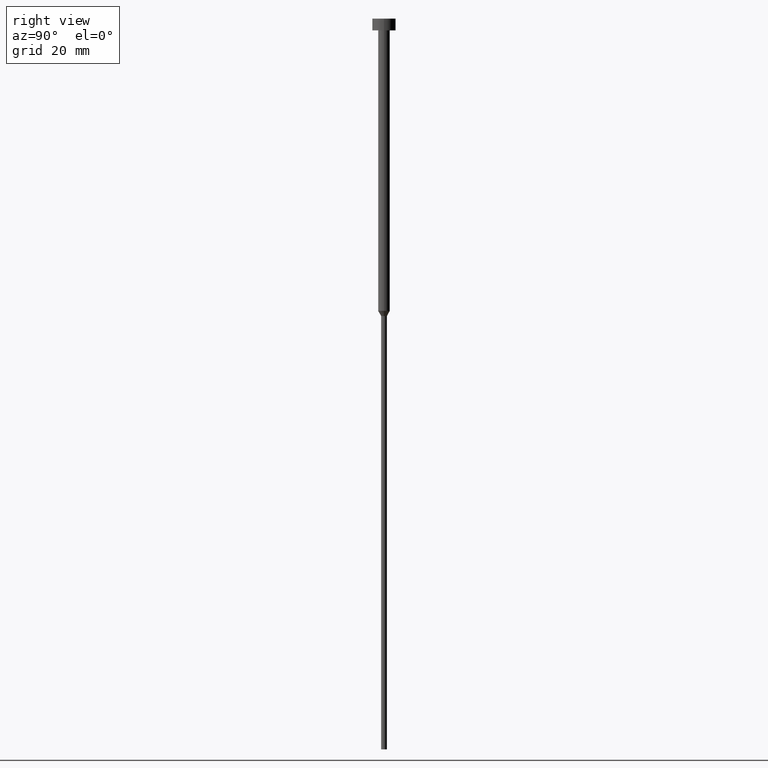
[diagram: clean part render]
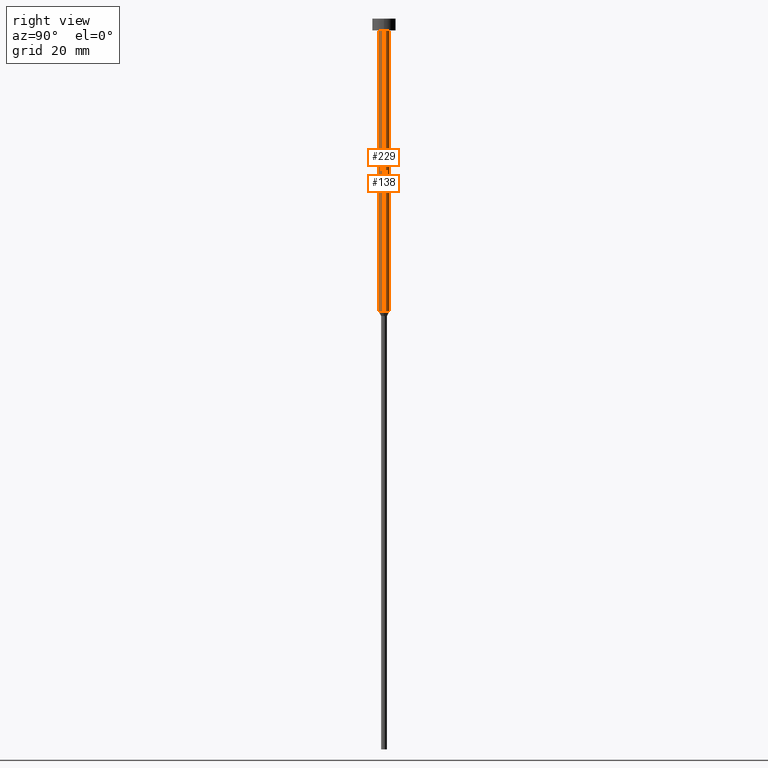
[diagram: same view with one multi-face feature highlighted, each face labeled with its STEP entity id]
A machine part, right view. The highlighted faces form ONE feature: a constant-radius fillet chain: 2 tangent blend faces with common blend radius 1 mm. The faces share edges in the B-rep.
Their STEP definitions:
[1] entity #138 (Cylinder):
#19 = EDGE_CURVE ( 'NONE', #308, #65, #204, .T. ) ;
#22 = DIRECTION ( 'NONE',  ( 1.000000000000000000, 0.000000000000000000, 0.000000000000000000 ) ) ;
#34 = EDGE_CURVE ( 'NONE', #220, #308, #131, .T. ) ;
#42 = VECTOR ( 'NONE', #73, 1000.000000000000000 ) ;
#52 = CARTESIAN_POINT ( 'NONE',  ( -1.000000000000003553, 1.224646799147357398E-16, -2.000000000000000444 ) ) ;
#64 = CIRCLE ( 'NONE', #323, 1.000000000000003553 ) ;
#65 = VERTEX_POINT ( 'NONE', #52 ) ;
#73 = DIRECTION ( 'NONE',  ( -0.000000000000000000, -0.000000000000000000, 1.000000000000000000 ) ) ;
#79 = DIRECTION ( 'NONE',  ( 1.000000000000000000, 0.000000000000000000, 0.000000000000000000 ) ) ;
#82 = CARTESIAN_POINT ( 'NONE',  ( 0.000000000000000000, 0.000000000000000000, -50.00000000000000000 ) ) ;
#85 = ORIENTED_EDGE ( 'NONE', *, *, #34, .T. ) ;
#90 = VERTEX_POINT ( 'NONE', #154 ) ;
#103 = FACE_OUTER_BOUND ( 'NONE', #332, .T. ) ;
#120 = DIRECTION ( 'NONE',  ( -0.000000000000000000, -0.000000000000000000, 1.000000000000000000 ) ) ;
#126 = EDGE_CURVE ( 'NONE', #90, #65, #64, .T. ) ;
#128 = CYLINDRICAL_SURFACE ( 'NONE', #193, 1.000000000000003331 ) ;
#131 = CIRCLE ( 'NONE', #170, 1.000000000000003109 ) ;
#138 = ADVANCED_FACE ( 'NONE', ( #103 ), #128, .T. ) ;
#154 = CARTESIAN_POINT ( 'NONE',  ( 1.000000000000003553, 0.000000000000000000, -2.000000000000000444 ) ) ;
#170 = AXIS2_PLACEMENT_3D ( 'NONE', #82, #248, #189 ) ;
#179 = CARTESIAN_POINT ( 'NONE',  ( 1.000000000000003331, 0.000000000000000000, 0.000000000000000000 ) ) ;
#184 = CARTESIAN_POINT ( 'NONE',  ( 0.000000000000000000, 0.000000000000000000, -2.000000000000000444 ) ) ;
#189 = DIRECTION ( 'NONE',  ( 1.000000000000000000, 0.000000000000000000, 0.000000000000000000 ) ) ;
#193 = AXIS2_PLACEMENT_3D ( 'NONE', #324, #245, #79 ) ;
#197 = CARTESIAN_POINT ( 'NONE',  ( -1.000000000000003109, 1.224646799147356905E-16, -50.00000000000000000 ) ) ;
#201 = ORIENTED_EDGE ( 'NONE', *, *, #282, .F. ) ;
#204 = LINE ( 'NONE', #206, #42 ) ;
#206 = CARTESIAN_POINT ( 'NONE',  ( -1.000000000000003331, 1.224646799147357151E-16, 0.000000000000000000 ) ) ;
#216 = CARTESIAN_POINT ( 'NONE',  ( 1.000000000000003109, 0.000000000000000000, -50.00000000000000000 ) ) ;
#220 = VERTEX_POINT ( 'NONE', #216 ) ;
#245 = DIRECTION ( 'NONE',  ( -0.000000000000000000, -0.000000000000000000, 1.000000000000000000 ) ) ;
#248 = DIRECTION ( 'NONE',  ( -0.000000000000000000, -0.000000000000000000, 1.000000000000000000 ) ) ;
#251 = ORIENTED_EDGE ( 'NONE', *, *, #19, .T. ) ;
#266 = DIRECTION ( 'NONE',  ( -0.000000000000000000, -0.000000000000000000, 1.000000000000000000 ) ) ;
#275 = ORIENTED_EDGE ( 'NONE', *, *, #126, .F. ) ;
#282 = EDGE_CURVE ( 'NONE', #220, #90, #307, .T. ) ;
#283 = VECTOR ( 'NONE', #120, 1000.000000000000000 ) ;
#307 = LINE ( 'NONE', #179, #283 ) ;
#308 = VERTEX_POINT ( 'NONE', #197 ) ;
#323 = AXIS2_PLACEMENT_3D ( 'NONE', #184, #266, #22 ) ;
#324 = CARTESIAN_POINT ( 'NONE',  ( 0.000000000000000000, 0.000000000000000000, 0.000000000000000000 ) ) ;
#332 = EDGE_LOOP ( 'NONE', ( #85, #251, #275, #201 ) ) ;
[2] entity #229 (Cylinder):
#10 = AXIS2_PLACEMENT_3D ( 'NONE', #155, #132, #293 ) ;
#13 = ORIENTED_EDGE ( 'NONE', *, *, #282, .T. ) ;
#19 = EDGE_CURVE ( 'NONE', #308, #65, #204, .T. ) ;
#31 = DIRECTION ( 'NONE',  ( 1.000000000000000000, 0.000000000000000000, 0.000000000000000000 ) ) ;
#42 = VECTOR ( 'NONE', #73, 1000.000000000000000 ) ;
#52 = CARTESIAN_POINT ( 'NONE',  ( -1.000000000000003553, 1.224646799147357398E-16, -2.000000000000000444 ) ) ;
#58 = ORIENTED_EDGE ( 'NONE', *, *, #254, .F. ) ;
#65 = VERTEX_POINT ( 'NONE', #52 ) ;
#72 = EDGE_CURVE ( 'NONE', #308, #220, #264, .T. ) ;
#73 = DIRECTION ( 'NONE',  ( -0.000000000000000000, -0.000000000000000000, 1.000000000000000000 ) ) ;
#86 = DIRECTION ( 'NONE',  ( -0.000000000000000000, -0.000000000000000000, 1.000000000000000000 ) ) ;
#90 = VERTEX_POINT ( 'NONE', #154 ) ;
#120 = DIRECTION ( 'NONE',  ( -0.000000000000000000, -0.000000000000000000, 1.000000000000000000 ) ) ;
#125 = CIRCLE ( 'NONE', #261, 1.000000000000003553 ) ;
#132 = DIRECTION ( 'NONE',  ( -0.000000000000000000, -0.000000000000000000, 1.000000000000000000 ) ) ;
#154 = CARTESIAN_POINT ( 'NONE',  ( 1.000000000000003553, 0.000000000000000000, -2.000000000000000444 ) ) ;
#155 = CARTESIAN_POINT ( 'NONE',  ( 0.000000000000000000, 0.000000000000000000, -50.00000000000000000 ) ) ;
#164 = FACE_OUTER_BOUND ( 'NONE', #176, .T. ) ;
#171 = DIRECTION ( 'NONE',  ( -0.000000000000000000, -0.000000000000000000, 1.000000000000000000 ) ) ;
#176 = EDGE_LOOP ( 'NONE', ( #344, #288, #13, #58 ) ) ;
#179 = CARTESIAN_POINT ( 'NONE',  ( 1.000000000000003331, 0.000000000000000000, 0.000000000000000000 ) ) ;
#187 = AXIS2_PLACEMENT_3D ( 'NONE', #277, #86, #31 ) ;
#197 = CARTESIAN_POINT ( 'NONE',  ( -1.000000000000003109, 1.224646799147356905E-16, -50.00000000000000000 ) ) ;
#204 = LINE ( 'NONE', #206, #42 ) ;
#206 = CARTESIAN_POINT ( 'NONE',  ( -1.000000000000003331, 1.224646799147357151E-16, 0.000000000000000000 ) ) ;
#216 = CARTESIAN_POINT ( 'NONE',  ( 1.000000000000003109, 0.000000000000000000, -50.00000000000000000 ) ) ;
#220 = VERTEX_POINT ( 'NONE', #216 ) ;
#229 = ADVANCED_FACE ( 'NONE', ( #164 ), #331, .T. ) ;
#254 = EDGE_CURVE ( 'NONE', #65, #90, #125, .T. ) ;
#261 = AXIS2_PLACEMENT_3D ( 'NONE', #287, #171, #341 ) ;
#264 = CIRCLE ( 'NONE', #10, 1.000000000000003109 ) ;
#277 = CARTESIAN_POINT ( 'NONE',  ( 0.000000000000000000, 0.000000000000000000, 0.000000000000000000 ) ) ;
#282 = EDGE_CURVE ( 'NONE', #220, #90, #307, .T. ) ;
#283 = VECTOR ( 'NONE', #120, 1000.000000000000000 ) ;
#287 = CARTESIAN_POINT ( 'NONE',  ( 0.000000000000000000, 0.000000000000000000, -2.000000000000000444 ) ) ;
#288 = ORIENTED_EDGE ( 'NONE', *, *, #72, .T. ) ;
#293 = DIRECTION ( 'NONE',  ( 1.000000000000000000, 0.000000000000000000, 0.000000000000000000 ) ) ;
#307 = LINE ( 'NONE', #179, #283 ) ;
#308 = VERTEX_POINT ( 'NONE', #197 ) ;
#331 = CYLINDRICAL_SURFACE ( 'NONE', #187, 1.000000000000003331 ) ;
#341 = DIRECTION ( 'NONE',  ( 1.000000000000000000, 0.000000000000000000, 0.000000000000000000 ) ) ;
#344 = ORIENTED_EDGE ( 'NONE', *, *, #19, .F. ) ;